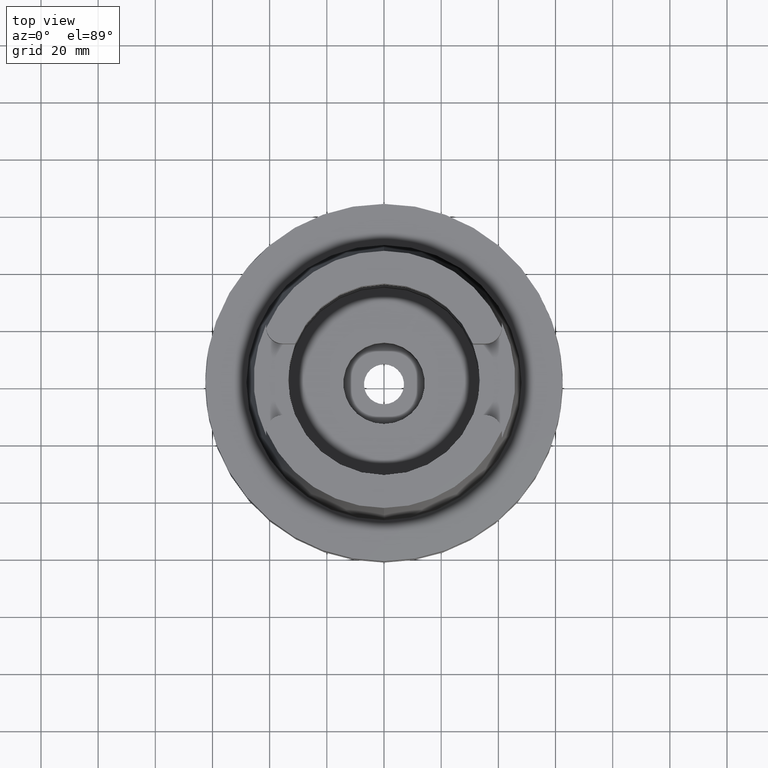
[diagram: clean part render]
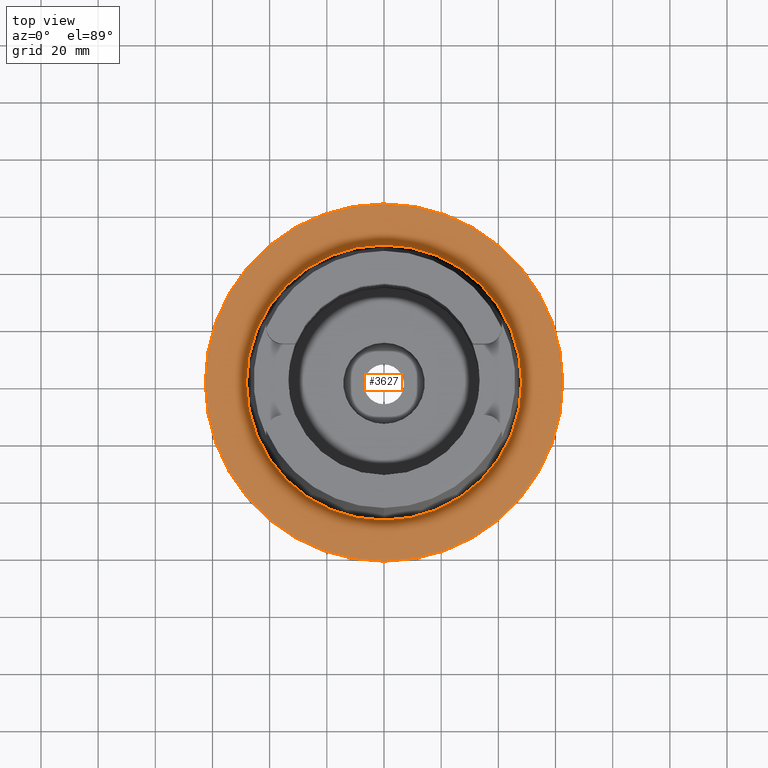
[diagram: same view with one face highlighted and labeled with its STEP entity id]
A machine part, top view. The second image highlights one B-rep face of the part: STEP entity #3627.
In plain terms, the highlighted planar face has unit normal (0, 0, -1).
Its self-contained STEP definition (entity closure, byte-faithful):
#1726=CARTESIAN_POINT('',(0.E0,1.497130711958E-14,0.E0));
#1727=DIRECTION('',(0.E0,0.E0,-1.E0));
#1728=DIRECTION('',(0.E0,-1.E0,0.E0));
#1729=AXIS2_PLACEMENT_3D('',#1726,#1727,#1728);
#1734=CARTESIAN_POINT('',(0.E0,1.497130711958E-14,0.E0));
#1735=DIRECTION('',(0.E0,0.E0,-1.E0));
#1736=DIRECTION('',(0.E0,1.E0,0.E0));
#1737=AXIS2_PLACEMENT_3D('',#1734,#1735,#1736);
#1742=CARTESIAN_POINT('',(0.E0,0.E0,-1.477928890381E-12));
#1743=DIRECTION('',(0.E0,0.E0,1.E0));
#1744=DIRECTION('',(0.E0,-1.E0,0.E0));
#1745=AXIS2_PLACEMENT_3D('',#1742,#1743,#1744);
#1750=CARTESIAN_POINT('',(0.E0,0.E0,-1.477928890381E-12));
#1751=DIRECTION('',(0.E0,0.E0,1.E0));
#1752=DIRECTION('',(0.E0,1.E0,0.E0));
#1753=AXIS2_PLACEMENT_3D('',#1750,#1751,#1752);
#2030=CARTESIAN_POINT('',(0.E0,-4.813422364777E1,-9.805489753489E-13));
#2031=VERTEX_POINT('',#2030);
#2032=CARTESIAN_POINT('',(0.E0,4.813422364777E1,-1.477928890381E-12));
#2033=VERTEX_POINT('',#2032);
#2268=CARTESIAN_POINT('',(0.E0,6.25E1,0.E0));
#2269=VERTEX_POINT('',#2268);
#2270=CARTESIAN_POINT('',(0.E0,-6.25E1,0.E0));
#2271=VERTEX_POINT('',#2270);
#3614=CARTESIAN_POINT('',(0.E0,0.E0,1.421085471520E-14));
#3615=DIRECTION('',(0.E0,0.E0,-1.E0));
#3616=DIRECTION('',(0.E0,-1.E0,0.E0));
#3617=AXIS2_PLACEMENT_3D('',#3614,#3615,#3616);
#3618=PLANE('',#3617);
#3619=ORIENTED_EDGE('',*,*,#3373,.T.);
#3620=ORIENTED_EDGE('',*,*,#3491,.T.);
#3621=EDGE_LOOP('',(#3619,#3620));
#3622=FACE_OUTER_BOUND('',#3621,.F.);
#3623=ORIENTED_EDGE('',*,*,#2474,.T.);
#3624=ORIENTED_EDGE('',*,*,#2438,.T.);
#3625=EDGE_LOOP('',(#3623,#3624));
#3626=FACE_BOUND('',#3625,.F.);
#1730=CIRCLE('',#1729,6.25E1);
#1738=CIRCLE('',#1737,6.25E1);
#1746=CIRCLE('',#1745,4.813422364777E1);
#1754=CIRCLE('',#1753,4.813422364777E1);
#2438=EDGE_CURVE('',#2033,#2031,#1754,.T.);
#2474=EDGE_CURVE('',#2031,#2033,#1746,.T.);
#3373=EDGE_CURVE('',#2271,#2269,#1730,.T.);
#3491=EDGE_CURVE('',#2269,#2271,#1738,.T.);
#3627=ADVANCED_FACE('',(#3622,#3626),#3618,.F.);